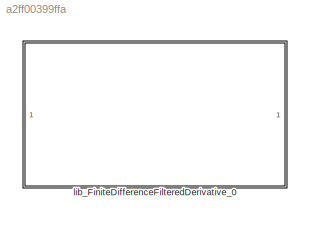
MODEL slx_a2ff00399ffa
KIND library
CONFIG AbsTol = auto
CONFIG EnableMultiTasking = off
CONFIG FixedStep = auto
CONFIG MaxStep = auto
CONFIG MinStep = auto
CONFIG RelTol = 1e-3
CONFIG SampleTimeConstraint = Unconstrained
CONFIG SolverName = VariableStepAuto
CONFIG StartTime = 0.0
CONFIG StopTime = 10.0
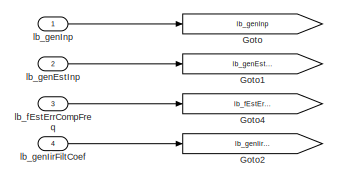
[diagram: lib_FiniteDifferenceFilteredDerivative_0 - part 1/4, top left region]
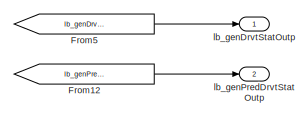
[diagram: lib_FiniteDifferenceFilteredDerivative_0 - part 2/4, top right region]
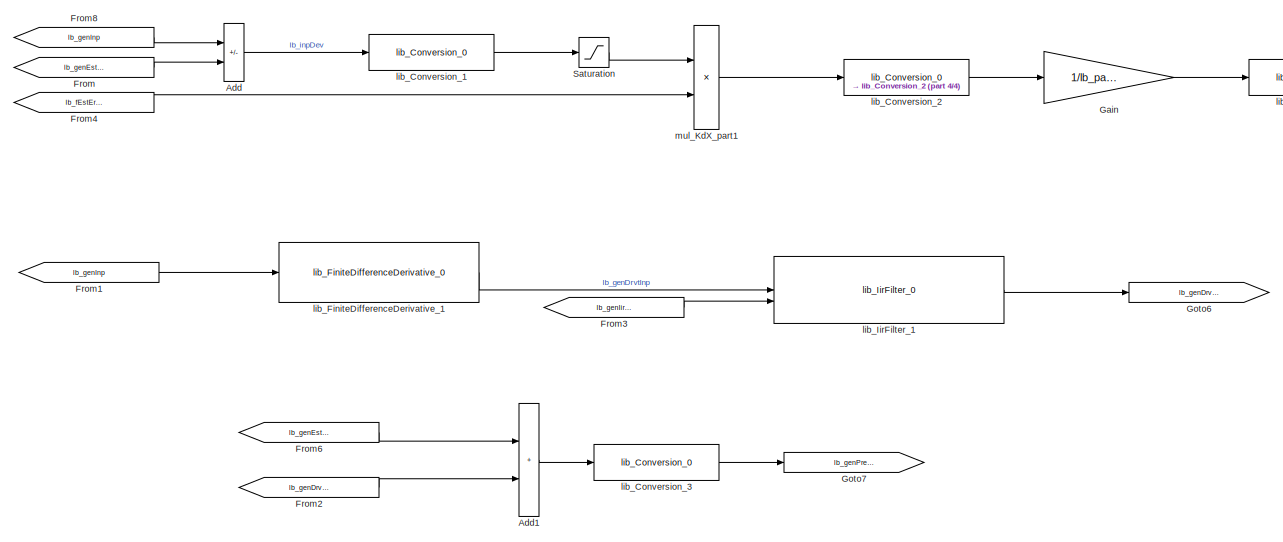
[diagram: lib_FiniteDifferenceFilteredDerivative_0 - part 3/4, center side, full height]
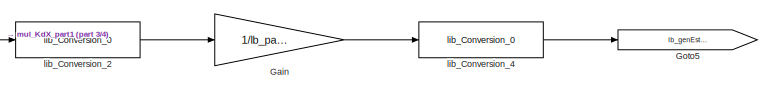
[diagram: lib_FiniteDifferenceFilteredDerivative_0 - part 4/4, middle right region]
BLOCK [SubSystem] lib_FiniteDifferenceFilteredDerivative_0
BLOCK [Sum] lib_FiniteDifferenceFilteredDerivative_0/Add
  IconShape = rectangular
  Inputs = +-
  OutDataTypeStr = Inherit: Inherit via back propagation
  RndMeth = Simplest
BLOCK [Sum] lib_FiniteDifferenceFilteredDerivative_0/Add1
  IconShape = rectangular
  OutDataTypeStr = Inherit: Inherit via back propagation
  RndMeth = Simplest
BLOCK [From] lib_FiniteDifferenceFilteredDerivative_0/From
  GotoTag = lb_genEstInp
BLOCK [From] lib_FiniteDifferenceFilteredDerivative_0/From1
  GotoTag = lb_genInp
BLOCK [From] lib_FiniteDifferenceFilteredDerivative_0/From12
  GotoTag = lb_genPredDrvtStatOutp
BLOCK [From] lib_FiniteDifferenceFilteredDerivative_0/From2
  GotoTag = lb_genDrvtStatOutp
BLOCK [From] lib_FiniteDifferenceFilteredDerivative_0/From3
  GotoTag = lb_genIirFiltCoef
BLOCK [From] lib_FiniteDifferenceFilteredDerivative_0/From4
  GotoTag = lb_fEstErrCompFreq
BLOCK [From] lib_FiniteDifferenceFilteredDerivative_0/From5
  GotoTag = lb_genDrvtStatOutp
BLOCK [From] lib_FiniteDifferenceFilteredDerivative_0/From6
  GotoTag = lb_genEstErrCompTerm
BLOCK [From] lib_FiniteDifferenceFilteredDerivative_0/From8
  GotoTag = lb_genInp
BLOCK [Gain] lib_FiniteDifferenceFilteredDerivative_0/Gain
  Gain = 1/lb_parOutpPekPhy
  OutDataTypeStr = Inherit: Inherit via back propagation
BLOCK [Goto] lib_FiniteDifferenceFilteredDerivative_0/Goto
  GotoTag = lb_genInp
BLOCK [Goto] lib_FiniteDifferenceFilteredDerivative_0/Goto1
  GotoTag = lb_genEstInp
BLOCK [Goto] lib_FiniteDifferenceFilteredDerivative_0/Goto2
  GotoTag = lb_genIirFiltCoef
BLOCK [Goto] lib_FiniteDifferenceFilteredDerivative_0/Goto4
  GotoTag = lb_fEstErrCompFreq
BLOCK [Goto] lib_FiniteDifferenceFilteredDerivative_0/Goto5
  GotoTag = lb_genEstErrCompTerm
BLOCK [Goto] lib_FiniteDifferenceFilteredDerivative_0/Goto6
  GotoTag = lb_genDrvtStatOutp
BLOCK [Goto] lib_FiniteDifferenceFilteredDerivative_0/Goto7
  GotoTag = lb_genPredDrvtStatOutp
BLOCK [Saturate] lib_FiniteDifferenceFilteredDerivative_0/Saturation
  LowerLimit = -lb_parInpEstErrMaxVal
  UpperLimit = lb_parInpEstErrMaxVal
BLOCK [Inport] lib_FiniteDifferenceFilteredDerivative_0/lb_fEstErrCompFreq
  Port = 3
BLOCK [Outport] lib_FiniteDifferenceFilteredDerivative_0/lb_genDrvtStatOutp
  PortDimensions = 1
  SamplingMode = Sample based
  SignalType = real
  VarSizeSig = No
  VectorParamsAs1DForOutWhenUnconnected = off
BLOCK [Inport] lib_FiniteDifferenceFilteredDerivative_0/lb_genEstInp
  Port = 2
  PortDimensions = 1
  SamplingMode = Sample based
  SignalType = real
  VarSizeSig = No
BLOCK [Inport] lib_FiniteDifferenceFilteredDerivative_0/lb_genIirFiltCoef
  Port = 4
BLOCK [Inport] lib_FiniteDifferenceFilteredDerivative_0/lb_genInp
  PortDimensions = 1
  SamplingMode = Sample based
  SignalType = real
  VarSizeSig = No
BLOCK [Outport] lib_FiniteDifferenceFilteredDerivative_0/lb_genPredDrvtStatOutp
  Port = 2
  PortDimensions = 1
  SamplingMode = Sample based
  SignalType = real
  VarSizeSig = No
  VectorParamsAs1DForOutWhenUnconnected = off
BLOCK [Reference] lib_FiniteDifferenceFilteredDerivative_0/lib_Conversion_1  REF=lib_conversion/lib_Conversion_0  (lib defined in slx_7f5c0202220d)
  SourceBlock = lib_conversion/lib_Conversion_0
BLOCK [Reference] lib_FiniteDifferenceFilteredDerivative_0/lib_Conversion_2  REF=lib_conversion/lib_Conversion_0  (lib defined in slx_7f5c0202220d)
  SourceBlock = lib_conversion/lib_Conversion_0
BLOCK [Reference] lib_FiniteDifferenceFilteredDerivative_0/lib_Conversion_3  REF=lib_conversion/lib_Conversion_0  (lib defined in slx_7f5c0202220d)
  SourceBlock = lib_conversion/lib_Conversion_0
BLOCK [Reference] lib_FiniteDifferenceFilteredDerivative_0/lib_Conversion_4  REF=lib_conversion/lib_Conversion_0  (lib defined in slx_7f5c0202220d)
  SourceBlock = lib_conversion/lib_Conversion_0
BLOCK [Reference] lib_FiniteDifferenceFilteredDerivative_0/lib_FiniteDifferenceDerivative_1  REF=lib_finite_difference_derivative/lib_FiniteDifferenceDerivative_0  (lib defined in slx_a767ffc09fc1)
  SourceBlock = lib_finite_difference_derivative/lib_FiniteDifferenceDerivative_0
BLOCK [Reference] lib_FiniteDifferenceFilteredDerivative_0/lib_IirFilter_1  REF=lib_iir_filter/lib_IirFilter_0  (lib defined in slx_5c8a7357b118)
  SourceBlock = lib_iir_filter/lib_IirFilter_0
BLOCK [Product] lib_FiniteDifferenceFilteredDerivative_0/mul_KdX_part1
  OutDataTypeStr = Inherit: Inherit via back propagation
  RndMeth = Simplest
LINE lib_FiniteDifferenceFilteredDerivative_0/Add1:1 -> lib_FiniteDifferenceFilteredDerivative_0/lib_Conversion_3:1
LINE lib_FiniteDifferenceFilteredDerivative_0/Add:1 -> lib_FiniteDifferenceFilteredDerivative_0/lib_Conversion_1:1
LINE lib_FiniteDifferenceFilteredDerivative_0/From12:1 -> lib_FiniteDifferenceFilteredDerivative_0/lb_genPredDrvtStatOutp:1
LINE lib_FiniteDifferenceFilteredDerivative_0/From1:1 -> lib_FiniteDifferenceFilteredDerivative_0/lib_FiniteDifferenceDerivative_1:1
LINE lib_FiniteDifferenceFilteredDerivative_0/From2:1 -> lib_FiniteDifferenceFilteredDerivative_0/Add1:2
LINE lib_FiniteDifferenceFilteredDerivative_0/From3:1 -> lib_FiniteDifferenceFilteredDerivative_0/lib_IirFilter_1:2
LINE lib_FiniteDifferenceFilteredDerivative_0/From4:1 -> lib_FiniteDifferenceFilteredDerivative_0/mul_KdX_part1:2
LINE lib_FiniteDifferenceFilteredDerivative_0/From5:1 -> lib_FiniteDifferenceFilteredDerivative_0/lb_genDrvtStatOutp:1
LINE lib_FiniteDifferenceFilteredDerivative_0/From6:1 -> lib_FiniteDifferenceFilteredDerivative_0/Add1:1
LINE lib_FiniteDifferenceFilteredDerivative_0/From8:1 -> lib_FiniteDifferenceFilteredDerivative_0/Add:1
LINE lib_FiniteDifferenceFilteredDerivative_0/From:1 -> lib_FiniteDifferenceFilteredDerivative_0/Add:2
LINE lib_FiniteDifferenceFilteredDerivative_0/Gain:1 -> lib_FiniteDifferenceFilteredDerivative_0/lib_Conversion_4:1
LINE lib_FiniteDifferenceFilteredDerivative_0/Saturation:1 -> lib_FiniteDifferenceFilteredDerivative_0/mul_KdX_part1:1
LINE lib_FiniteDifferenceFilteredDerivative_0/lb_fEstErrCompFreq:1 -> lib_FiniteDifferenceFilteredDerivative_0/Goto4:1
LINE lib_FiniteDifferenceFilteredDerivative_0/lb_genEstInp:1 -> lib_FiniteDifferenceFilteredDerivative_0/Goto1:1
LINE lib_FiniteDifferenceFilteredDerivative_0/lb_genIirFiltCoef:1 -> lib_FiniteDifferenceFilteredDerivative_0/Goto2:1
LINE lib_FiniteDifferenceFilteredDerivative_0/lb_genInp:1 -> lib_FiniteDifferenceFilteredDerivative_0/Goto:1
LINE lib_FiniteDifferenceFilteredDerivative_0/lib_Conversion_1:1 -> lib_FiniteDifferenceFilteredDerivative_0/Saturation:1
LINE lib_FiniteDifferenceFilteredDerivative_0/lib_Conversion_2:1 -> lib_FiniteDifferenceFilteredDerivative_0/Gain:1
LINE lib_FiniteDifferenceFilteredDerivative_0/lib_Conversion_3:1 -> lib_FiniteDifferenceFilteredDerivative_0/Goto7:1
LINE lib_FiniteDifferenceFilteredDerivative_0/lib_Conversion_4:1 -> lib_FiniteDifferenceFilteredDerivative_0/Goto5:1
LINE lib_FiniteDifferenceFilteredDerivative_0/lib_FiniteDifferenceDerivative_1:1 -> lib_FiniteDifferenceFilteredDerivative_0/lib_IirFilter_1:1
LINE lib_FiniteDifferenceFilteredDerivative_0/lib_IirFilter_1:1 -> lib_FiniteDifferenceFilteredDerivative_0/Goto6:1
LINE lib_FiniteDifferenceFilteredDerivative_0/mul_KdX_part1:1 -> lib_FiniteDifferenceFilteredDerivative_0/lib_Conversion_2:1
